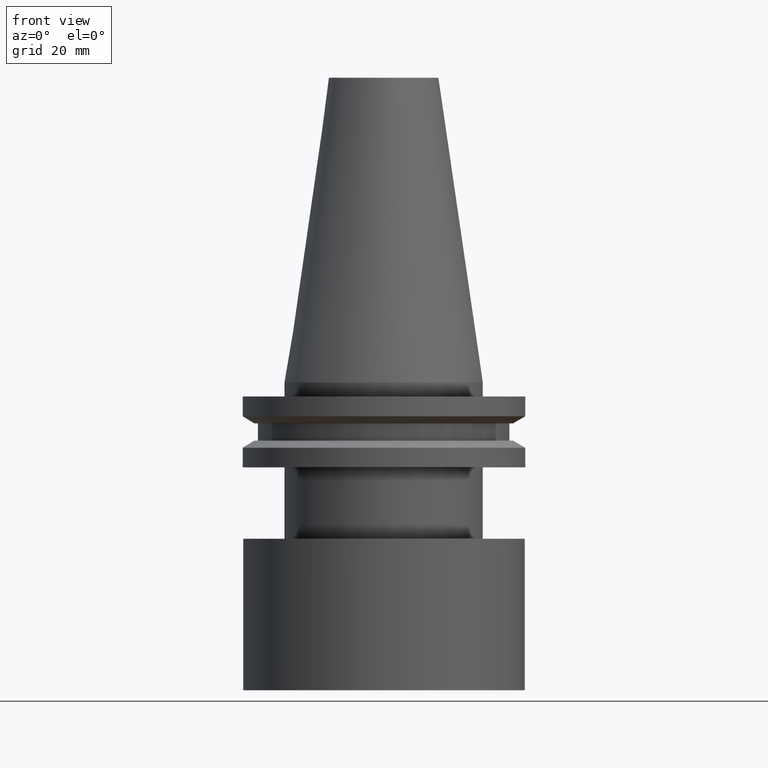
[diagram: clean part render]
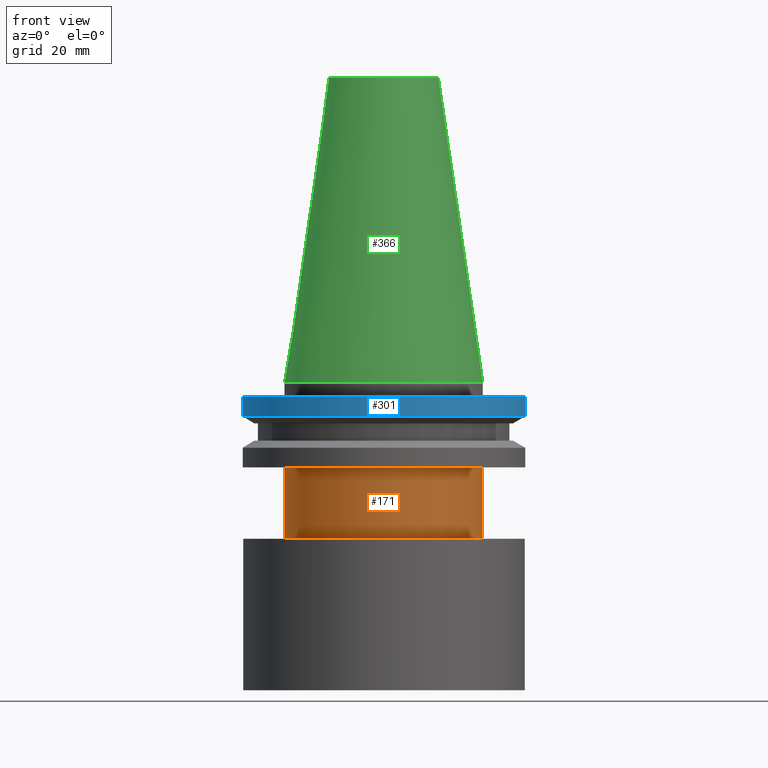
[diagram: same view with three faces highlighted in distinct colors, each labeled with its STEP entity id]
A machine part, front view with three faces highlighted in distinct colors.
Their STEP definitions:

[orange] entity #171 — the highlighted cylindrical surface (bore or boss wall) has radius 22.225 mm, axis along (-0, -0, 1).
#3 = CIRCLE ( 'NONE', #89, 22.22500000000000142 ) ;
#16 = ORIENTED_EDGE ( 'NONE', *, *, #43, .T. ) ;
#24 = FACE_OUTER_BOUND ( 'NONE', #337, .T. ) ;
#43 = EDGE_CURVE ( 'NONE', #358, #358, #312, .T. ) ;
#63 = VERTEX_POINT ( 'NONE', #113 ) ;
#89 = AXIS2_PLACEMENT_3D ( 'NONE', #224, #139, #283 ) ;
#107 = CARTESIAN_POINT ( 'NONE',  ( 0.000000000000000000, 0.000000000000000000, 68.25000000000000000 ) ) ;
#113 = CARTESIAN_POINT ( 'NONE',  ( 22.22500000000000142, 0.000000000000000000, -19.04999999999999716 ) ) ;
#136 = DIRECTION ( 'NONE',  ( -0.000000000000000000, -0.000000000000000000, 1.000000000000000000 ) ) ;
#139 = DIRECTION ( 'NONE',  ( -0.000000000000000000, -0.000000000000000000, 1.000000000000000000 ) ) ;
#171 = ADVANCED_FACE ( 'NONE', ( #197, #24 ), #380, .T. ) ;
#178 = EDGE_LOOP ( 'NONE', ( #345 ) ) ;
#188 = CARTESIAN_POINT ( 'NONE',  ( 0.000000000000000000, 0.000000000000000000, -35.04999999999999716 ) ) ;
#197 = FACE_OUTER_BOUND ( 'NONE', #178, .T. ) ;
#215 = AXIS2_PLACEMENT_3D ( 'NONE', #188, #309, #374 ) ;
#224 = CARTESIAN_POINT ( 'NONE',  ( 0.000000000000000000, 0.000000000000000000, -19.04999999999999716 ) ) ;
#231 = EDGE_CURVE ( 'NONE', #63, #63, #3, .T. ) ;
#259 = DIRECTION ( 'NONE',  ( 1.000000000000000000, 0.000000000000000000, 0.000000000000000000 ) ) ;
#260 = CARTESIAN_POINT ( 'NONE',  ( 22.22500000000000142, 0.000000000000000000, -35.04999999999999716 ) ) ;
#283 = DIRECTION ( 'NONE',  ( 1.000000000000000000, 0.000000000000000000, 0.000000000000000000 ) ) ;
#289 = AXIS2_PLACEMENT_3D ( 'NONE', #107, #136, #259 ) ;
#309 = DIRECTION ( 'NONE',  ( -0.000000000000000000, -0.000000000000000000, 1.000000000000000000 ) ) ;
#312 = CIRCLE ( 'NONE', #215, 22.22500000000000142 ) ;
#337 = EDGE_LOOP ( 'NONE', ( #16 ) ) ;
#345 = ORIENTED_EDGE ( 'NONE', *, *, #231, .F. ) ;
#358 = VERTEX_POINT ( 'NONE', #260 ) ;
#374 = DIRECTION ( 'NONE',  ( 1.000000000000000000, 0.000000000000000000, 0.000000000000000000 ) ) ;
#380 = CYLINDRICAL_SURFACE ( 'NONE', #289, 22.22500000000000142 ) ;

[blue] entity #301 — the highlighted cylindrical surface (bore or boss wall) has radius 31.75 mm, axis along (-0, -0, 1).
#12 = AXIS2_PLACEMENT_3D ( 'NONE', #317, #47, #347 ) ;
#42 = CARTESIAN_POINT ( 'NONE',  ( 0.000000000000000000, 0.000000000000000000, -7.605276606597335842 ) ) ;
#47 = DIRECTION ( 'NONE',  ( -0.000000000000000000, -0.000000000000000000, 1.000000000000000000 ) ) ;
#52 = VERTEX_POINT ( 'NONE', #340 ) ;
#62 = FACE_OUTER_BOUND ( 'NONE', #269, .T. ) ;
#73 = ORIENTED_EDGE ( 'NONE', *, *, #74, .T. ) ;
#74 = EDGE_CURVE ( 'NONE', #52, #52, #245, .T. ) ;
#92 = EDGE_LOOP ( 'NONE', ( #328 ) ) ;
#110 = VERTEX_POINT ( 'NONE', #168 ) ;
#119 = CIRCLE ( 'NONE', #12, 31.75000000000000000 ) ;
#146 = DIRECTION ( 'NONE',  ( -0.000000000000000000, -0.000000000000000000, 1.000000000000000000 ) ) ;
#156 = DIRECTION ( 'NONE',  ( -0.000000000000000000, -0.000000000000000000, 1.000000000000000000 ) ) ;
#168 = CARTESIAN_POINT ( 'NONE',  ( 31.75000000000000000, 0.000000000000000000, -3.174999999999997158 ) ) ;
#174 = AXIS2_PLACEMENT_3D ( 'NONE', #175, #146, #181 ) ;
#175 = CARTESIAN_POINT ( 'NONE',  ( 0.000000000000000000, 0.000000000000000000, 68.25000000000000000 ) ) ;
#181 = DIRECTION ( 'NONE',  ( 1.000000000000000000, 0.000000000000000000, 0.000000000000000000 ) ) ;
#207 = FACE_OUTER_BOUND ( 'NONE', #92, .T. ) ;
#211 = EDGE_CURVE ( 'NONE', #110, #110, #119, .T. ) ;
#226 = AXIS2_PLACEMENT_3D ( 'NONE', #42, #156, #341 ) ;
#245 = CIRCLE ( 'NONE', #226, 31.75000000000000000 ) ;
#269 = EDGE_LOOP ( 'NONE', ( #73 ) ) ;
#294 = CYLINDRICAL_SURFACE ( 'NONE', #174, 31.75000000000000000 ) ;
#301 = ADVANCED_FACE ( 'NONE', ( #207, #62 ), #294, .T. ) ;
#317 = CARTESIAN_POINT ( 'NONE',  ( 0.000000000000000000, 0.000000000000000000, -3.174999999999997158 ) ) ;
#328 = ORIENTED_EDGE ( 'NONE', *, *, #211, .F. ) ;
#340 = CARTESIAN_POINT ( 'NONE',  ( 31.75000000000000000, 0.000000000000000000, -7.605276606597335842 ) ) ;
#341 = DIRECTION ( 'NONE',  ( 1.000000000000000000, 0.000000000000000000, 0.000000000000000000 ) ) ;
#347 = DIRECTION ( 'NONE',  ( 1.000000000000000000, 0.000000000000000000, 0.000000000000000000 ) ) ;

[green] entity #366 — the highlighted conical surface has half-angle 8.297 deg.
#4 = EDGE_CURVE ( 'NONE', #235, #235, #127, .T. ) ;
#13 = CONICAL_SURFACE ( 'NONE', #71, 22.22500000000000142, 0.1448138465474119174 ) ;
#29 = CARTESIAN_POINT ( 'NONE',  ( 0.000000000000000000, 0.000000000000000000, 0.000000000000000000 ) ) ;
#31 = DIRECTION ( 'NONE',  ( 0.000000000000000000, 0.000000000000000000, -1.000000000000000000 ) ) ;
#36 = DIRECTION ( 'NONE',  ( -0.000000000000000000, -0.000000000000000000, 1.000000000000000000 ) ) ;
#38 = EDGE_LOOP ( 'NONE', ( #84 ) ) ;
#39 = AXIS2_PLACEMENT_3D ( 'NONE', #244, #36, #246 ) ;
#59 = CARTESIAN_POINT ( 'NONE',  ( 12.27178102086201150, 0.000000000000000000, 68.25000000000000000 ) ) ;
#69 = ORIENTED_EDGE ( 'NONE', *, *, #4, .F. ) ;
#71 = AXIS2_PLACEMENT_3D ( 'NONE', #29, #31, #331 ) ;
#72 = EDGE_CURVE ( 'NONE', #391, #391, #105, .T. ) ;
#81 = FACE_BOUND ( 'NONE', #314, .T. ) ;
#84 = ORIENTED_EDGE ( 'NONE', *, *, #72, .T. ) ;
#105 = CIRCLE ( 'NONE', #257, 22.22500000000000142 ) ;
#127 = CIRCLE ( 'NONE', #39, 12.27178102086201150 ) ;
#166 = CARTESIAN_POINT ( 'NONE',  ( 22.22500000000000142, 0.000000000000000000, 0.000000000000000000 ) ) ;
#189 = DIRECTION ( 'NONE',  ( 1.000000000000000000, 0.000000000000000000, 0.000000000000000000 ) ) ;
#216 = DIRECTION ( 'NONE',  ( -0.000000000000000000, -0.000000000000000000, 1.000000000000000000 ) ) ;
#235 = VERTEX_POINT ( 'NONE', #59 ) ;
#244 = CARTESIAN_POINT ( 'NONE',  ( 0.000000000000000000, 0.000000000000000000, 68.25000000000000000 ) ) ;
#246 = DIRECTION ( 'NONE',  ( 1.000000000000000000, 0.000000000000000000, 0.000000000000000000 ) ) ;
#257 = AXIS2_PLACEMENT_3D ( 'NONE', #275, #216, #189 ) ;
#266 = FACE_OUTER_BOUND ( 'NONE', #38, .T. ) ;
#275 = CARTESIAN_POINT ( 'NONE',  ( 0.000000000000000000, 0.000000000000000000, 0.000000000000000000 ) ) ;
#314 = EDGE_LOOP ( 'NONE', ( #69 ) ) ;
#331 = DIRECTION ( 'NONE',  ( -1.000000000000000000, 0.000000000000000000, 0.000000000000000000 ) ) ;
#366 = ADVANCED_FACE ( 'NONE', ( #81, #266 ), #13, .T. ) ;
#391 = VERTEX_POINT ( 'NONE', #166 ) ;